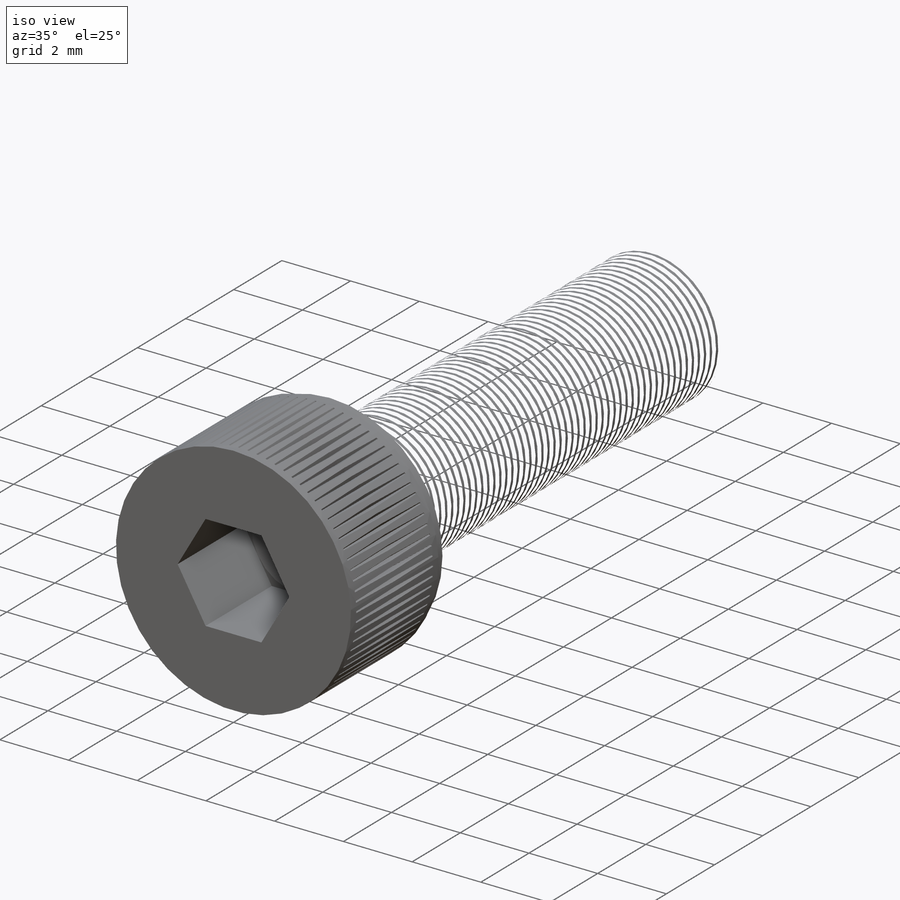
[diagram: iso view]
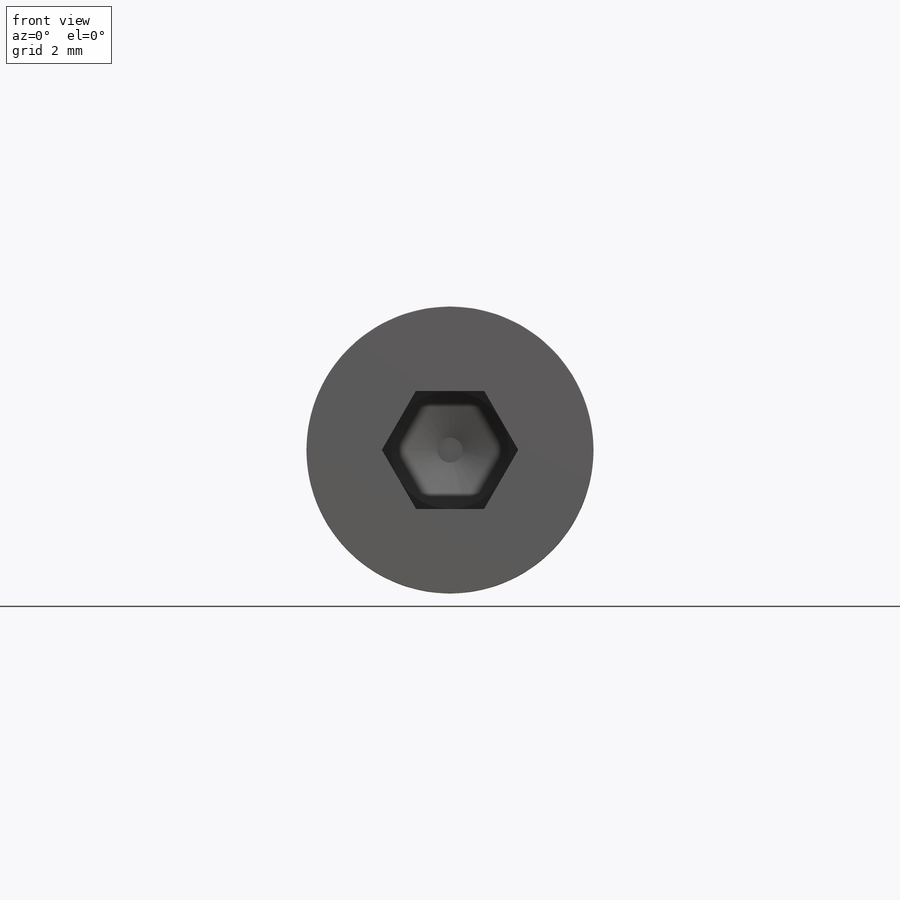
[diagram: front view]
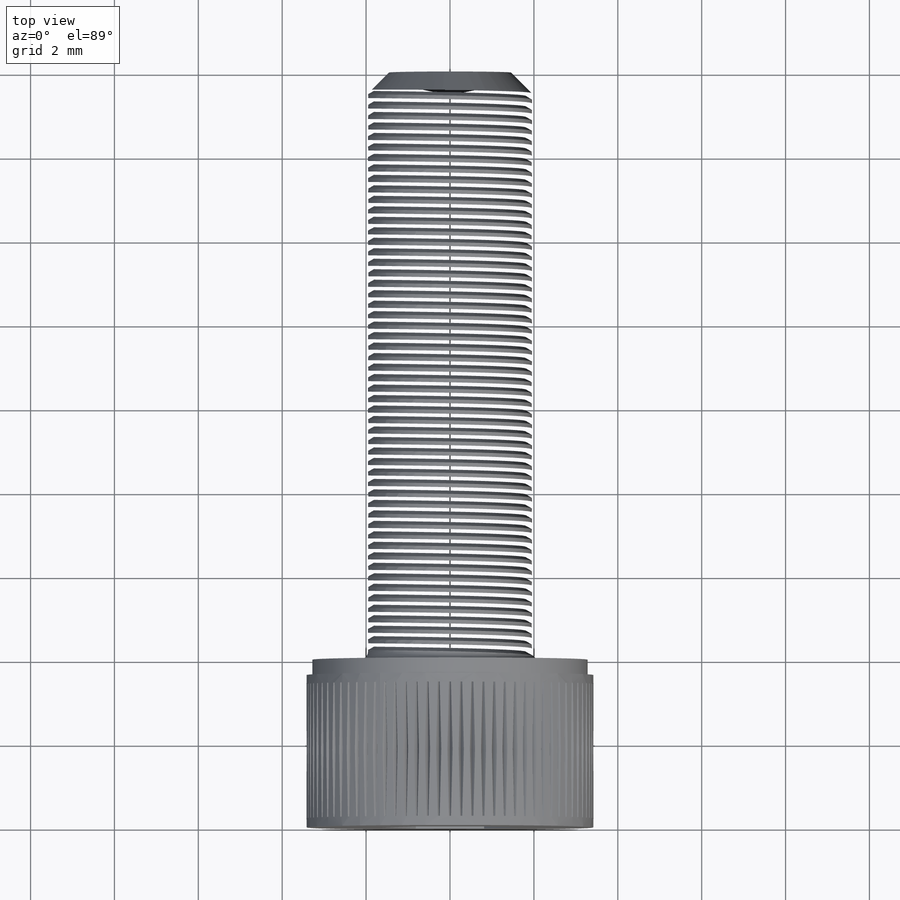
[diagram: top view]
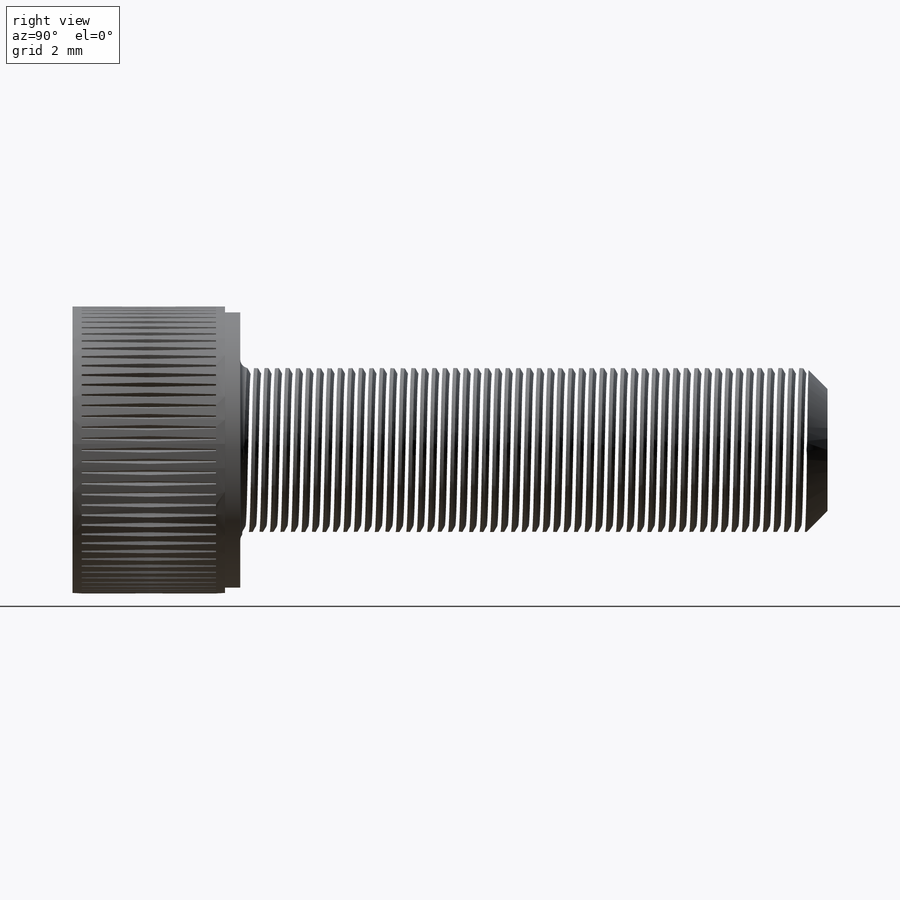
[diagram: right view]
SOLIDWORKS PART (.sldprt)
format: sldprt  version: not decoded by parser v0  size: 1,907,712 bytes
history: native  units: mm
features: sketch x6, cut_extrude x2, material x1, revolve x1, plane x1, fillet x1, chamfer x1, cut_revolve x1, dome x1, helix x1, sweep x1 (+12 scaffold rows collapsed)
feature tree (29):
  scaffold x12  (default folders/planes/origin — collapsed)
  material  "1.4305 (X8CrNiS18-9)"
  sketch  "Croquis1"  dims[c1.D1=4.0mm c1.D2=14.0mm c1.D3=1.955mm c1.D4=3.42mm c2.D1=4.0mm c2.D5=~0.364954mm c2.D6=~0.13798mm]
  revolve  "Revolución1"  Angle=360deg
  plane  "Plano1"  Offset=1.82mm
  fillet  "Redondeo1"  Radius=0.2mm
  chamfer  "Chaflán1"  Distance=0.5mm Angle=45deg
  sketch  "Croquis2"  dims[D1=1.625mm]
  cut_extrude  "Cortar-Extruir1"  Depth=2.75mm
  sketch  "Croquis4"  dims[D1=0.3mm D2=0.35mm]
  cut_revolve  "Cortar-Revolución1"  Angle=360deg
  sketch  "Croquis7"  dims[D1=80.0]
  cut_extrude  "Cortar-Extruir3"  Depth=3.2mm
  dome  "Cúpula1"
  sketch  "Croquis10"
  helix  "Hélice/Espiral1"  Pitch=13.5mm
  sketch  "Croquis11"  dims[D1=0.24mm]
  sweep  "Cortar-Barrer1"
decode coverage: 12 of 15 modeling features carry decoded parameters
note: ~ marks probable driven/reference dimensions
note: suppression state not decoded; provenance and decode notes live in map.json
